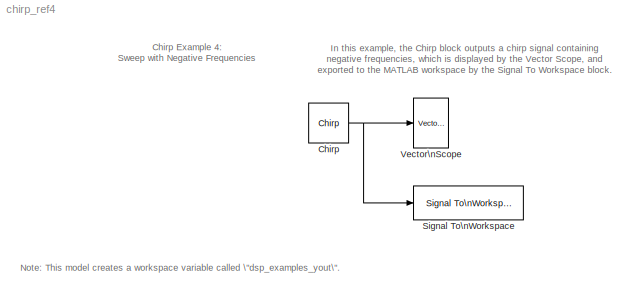
MODEL chirp_ref4
KIND model
CONFIG AbsTol = auto
CONFIG FixedStep = auto
CONFIG MaxStep = auto
CONFIG MinStep = auto
CONFIG RelTol = 1e-3
CONFIG Solver = FixedStepDiscrete
CONFIG SolverMode = Auto
CONFIG StartTime = 0.0
CONFIG StopTime = 5
BLOCK [Reference] Chirp  REF=dspsrcs4/Chirp
  Ports = [0, 1]
  SourceBlock = dspsrcs4/Chirp
  SourceType = Chirp
  Ts = 1/400
  Tsweep = 1.5
  datatype = Double
  f0 = 25
  f1 = 0
  mode = Unidirectional
  phase = 0
  spf = 400
  sweep = Linear
  t1 = 1
BLOCK [Reference] Signal To\nWorkspace  REF=dspsnks4/Signal To\nWorkspace
  Decimation = 1
  FrameMode = Concatenate frames (2-D array)
  MaxDataPoints = inf
  Ports = [1]
  SourceBlock = dspsnks4/Signal To\nWorkspace
  SourceType = Signal To Workspace
  VariableName = dsp_examples_yout
BLOCK [Reference] Vector\nScope  REF=dspsnks4/Vector\nScope
  AxisGrid = on
  AxisLegend = off
  AxisProperties = off
  AxisZoom = off
  DisplayProperties = off
  Domain = Time
  FigPos = [720 450 650 320]
  FrameNumber = on
  HorizSpan = 6
  InheritXIncr = on
  LineProperties = off
  Memory = off
  OpenScopeAtSimStart = on
  OpenScopeImmediately = off
  Ports = [1]
  ScopeProperties = on
  SourceBlock = dspsnks4/Vector\nScope
  SourceType = Vector Scope
  XIncr = 1
  XLabel = Time
  XRange = [0...Fs/2]
  XUnits = Hertz
  YLabel = Amplitude
  YMax = 10
  YMin = -10
  YUnits = dB
ANNOTATION (root): Chirp Example 4:\nSweep with Negative Frequencies
ANNOTATION (root): In this example, the Chirp block outputs a chirp signal containing \nnegative frequencies, which is displayed by the Vector Scope, and \nexported to the MATLAB workspace by the Signal To Workspace block.
ANNOTATION (root): Note: This model creates a workspace variable called \"dsp_examples_yout\".
NET Chirp:1 -> Signal To\nWorkspace:1, Vector\nScope:1
note: NET lines group one-source signal fan-out (src -> all destinations, sorted); 1:1 wires keep LINE
